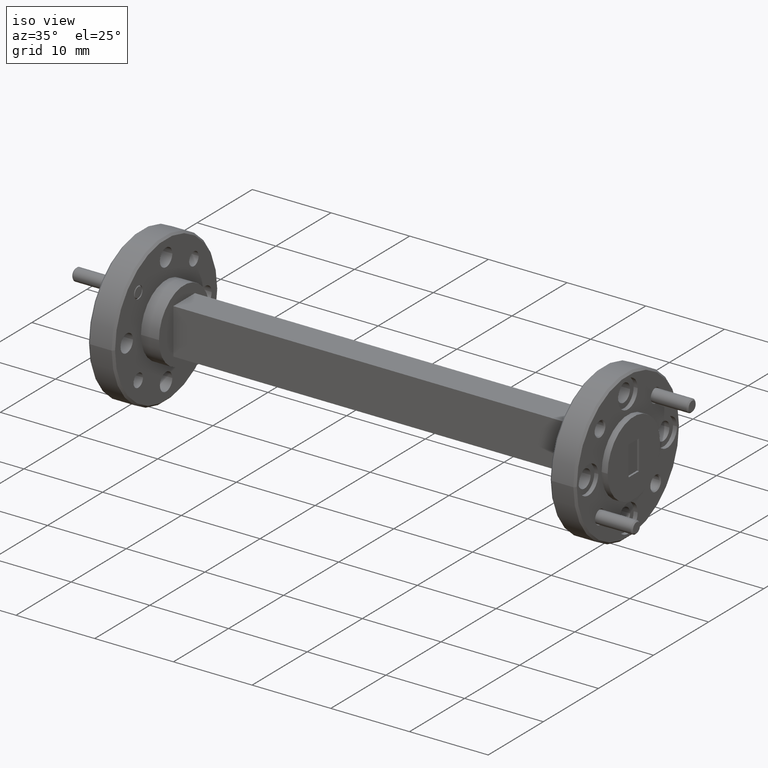
[diagram: clean part render]
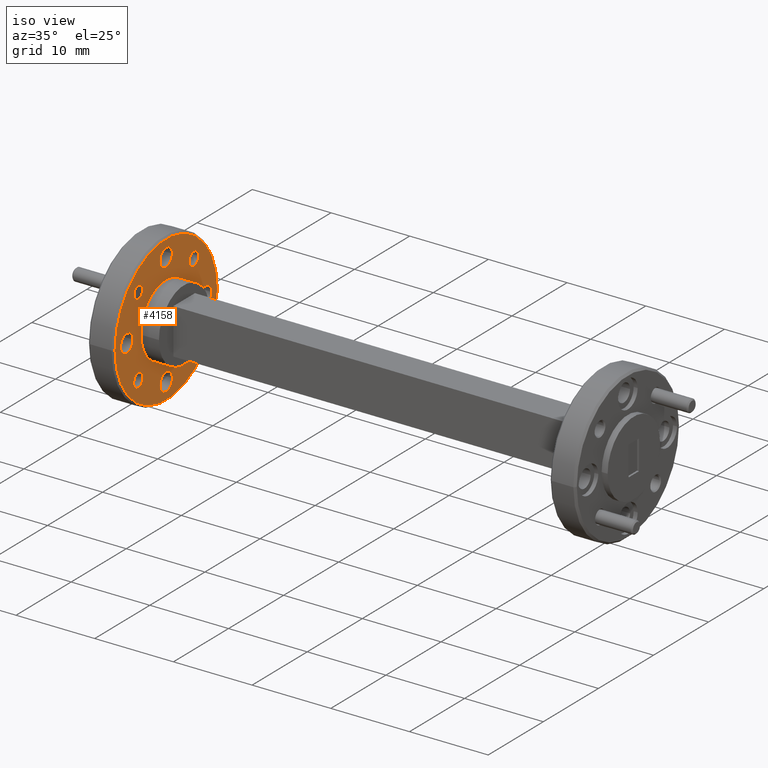
[diagram: same view with one face highlighted and labeled with its STEP entity id]
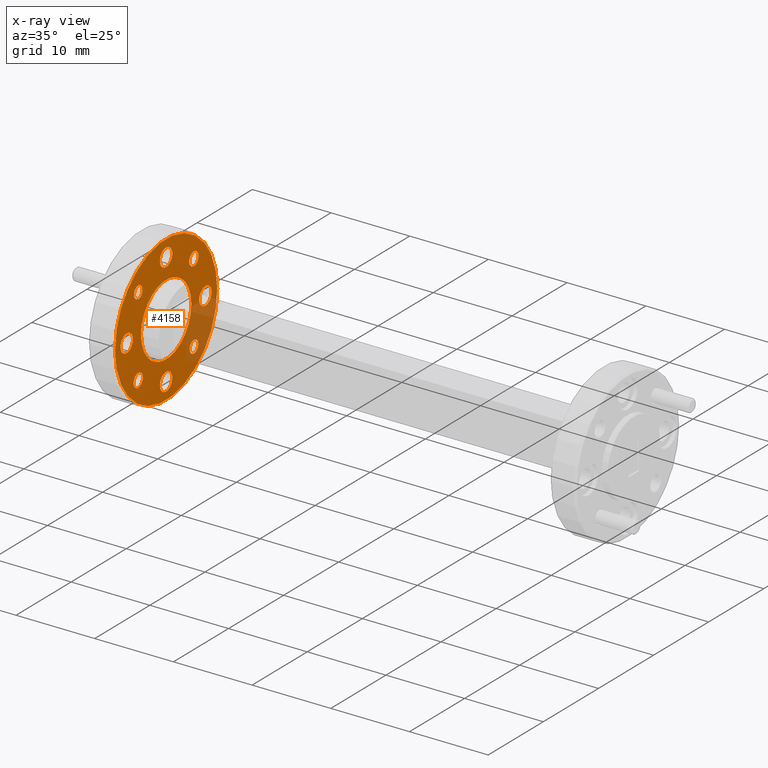
[diagram: x-ray of the same camera — body ghosted, the highlighted face saturated]
A machine part, iso view. The second image highlights one B-rep face of the part: STEP entity #4158.
The next image is the same camera in x-ray: the body ghosted, the highlighted face saturated — about 14% of this face is hidden behind the body in this view.
In plain terms, the highlighted planar face has unit normal (1, 0, -0).
Its self-contained STEP definition (entity closure, byte-faithful):
#10 = CARTESIAN_POINT ( 'NONE',  ( 0.1599999999999999201, 0.1653737822087167353, 0.1988737822087165430 ) ) ;
#12 = EDGE_LOOP ( 'NONE', ( #1241, #1988 ) ) ;
#22 = ORIENTED_EDGE ( 'NONE', *, *, #4149, .F. ) ;
#32 = DIRECTION ( 'NONE',  ( 1.000000000000000000, 1.224646799147353454E-16, -0.000000000000000000 ) ) ;
#33 = CIRCLE ( 'NONE', #1723, 0.04450000000000008116 ) ;
#72 = AXIS2_PLACEMENT_3D ( 'NONE', #1639, #2360, #3016 ) ;
#79 = DIRECTION ( 'NONE',  ( 0.000000000000000000, 1.000000000000000000, 0.000000000000000000 ) ) ;
#80 = DIRECTION ( 'NONE',  ( 0.000000000000000000, 1.000000000000000000, 0.000000000000000000 ) ) ;
#89 = VERTEX_POINT ( 'NONE', #10 ) ;
#118 = CARTESIAN_POINT ( 'NONE',  ( 0.1599999999999999201, -0.1988737822087163765, 0.1988737822087165430 ) ) ;
#140 = CARTESIAN_POINT ( 'NONE',  ( 0.1599999999999999201, 0.2367500000000000437, 0.000000000000000000 ) ) ;
#228 = DIRECTION ( 'NONE',  ( 0.000000000000000000, 1.000000000000000000, 0.000000000000000000 ) ) ;
#242 = EDGE_CURVE ( 'NONE', #3705, #1384, #3475, .T. ) ;
#248 = EDGE_CURVE ( 'NONE', #1384, #3705, #1343, .T. ) ;
#259 = DIRECTION ( 'NONE',  ( 0.000000000000000000, 1.000000000000000000, 0.000000000000000000 ) ) ;
#260 = ORIENTED_EDGE ( 'NONE', *, *, #3370, .F. ) ;
#288 = VERTEX_POINT ( 'NONE', #3959 ) ;
#301 = CARTESIAN_POINT ( 'NONE',  ( 0.1599999999999999201, 2.076554828674892129E-17, -0.2812500000000000000 ) ) ;
#388 = DIRECTION ( 'NONE',  ( 1.000000000000000000, 1.224646799147353454E-16, -0.000000000000000000 ) ) ;
#389 = DIRECTION ( 'NONE',  ( 1.000000000000000000, 1.224646799147353454E-16, -0.000000000000000000 ) ) ;
#422 = CARTESIAN_POINT ( 'NONE',  ( 0.1599999999999999201, -0.1681237822087164047, 0.1988737822087165430 ) ) ;
#427 = CARTESIAN_POINT ( 'NONE',  ( 0.1599999999999999201, 0.2323737822087167948, 0.1988737822087165430 ) ) ;
#457 = EDGE_CURVE ( 'NONE', #3302, #2813, #752, .T. ) ;
#458 = CIRCLE ( 'NONE', #3823, 0.03349999999999999506 ) ;
#486 = PLANE ( 'NONE',  #2641 ) ;
#528 = CARTESIAN_POINT ( 'NONE',  ( 0.1600000000000000033, 0.3749999999999996669, 0.000000000000000000 ) ) ;
#552 = AXIS2_PLACEMENT_3D ( 'NONE', #2821, #1495, #3575 ) ;
#554 = CARTESIAN_POINT ( 'NONE',  ( 0.1599999999999999201, -0.1988737822087164597, -0.1988737822087165430 ) ) ;
#570 = CARTESIAN_POINT ( 'NONE',  ( 0.1599999999999999201, 0.1988737822087166263, -0.1988737822087165430 ) ) ;
#573 = VERTEX_POINT ( 'NONE', #3746 ) ;
#591 = DIRECTION ( 'NONE',  ( 1.000000000000000000, 1.224646799147353454E-16, -0.000000000000000000 ) ) ;
#603 = EDGE_CURVE ( 'NONE', #3586, #2512, #2364, .T. ) ;
#607 = ORIENTED_EDGE ( 'NONE', *, *, #3587, .F. ) ;
#609 = ORIENTED_EDGE ( 'NONE', *, *, #242, .F. ) ;
#644 = CARTESIAN_POINT ( 'NONE',  ( 0.1600000000000000588, 1.901877013581963504E-17, 0.000000000000000000 ) ) ;
#669 = ORIENTED_EDGE ( 'NONE', *, *, #4051, .F. ) ;
#736 = ORIENTED_EDGE ( 'NONE', *, *, #2256, .F. ) ;
#741 = CIRCLE ( 'NONE', #1283, 0.04450000000000003259 ) ;
#750 = EDGE_CURVE ( 'NONE', #2032, #884, #4038, .T. ) ;
#752 = CIRCLE ( 'NONE', #2215, 0.1799999999999998546 ) ;
#813 = FACE_BOUND ( 'NONE', #907, .T. ) ;
#884 = VERTEX_POINT ( 'NONE', #2310 ) ;
#886 = AXIS2_PLACEMENT_3D ( 'NONE', #1137, #2822, #3806 ) ;
#907 = EDGE_LOOP ( 'NONE', ( #3434, #933 ) ) ;
#915 = DIRECTION ( 'NONE',  ( 1.000000000000000000, 1.224646799147353454E-16, -0.000000000000000000 ) ) ;
#933 = ORIENTED_EDGE ( 'NONE', *, *, #1248, .F. ) ;
#944 = DIRECTION ( 'NONE',  ( 1.000000000000000000, 1.224646799147353454E-16, -0.000000000000000000 ) ) ;
#1004 = CARTESIAN_POINT ( 'NONE',  ( 0.1599999999999999201, 2.076554828674892129E-17, 0.2812500000000000000 ) ) ;
#1024 = EDGE_LOOP ( 'NONE', ( #260, #3297 ) ) ;
#1057 = ORIENTED_EDGE ( 'NONE', *, *, #603, .T. ) ;
#1110 = VERTEX_POINT ( 'NONE', #3250 ) ;
#1119 = EDGE_CURVE ( 'NONE', #2391, #1110, #2545, .T. ) ;
#1137 = CARTESIAN_POINT ( 'NONE',  ( 0.1600000000000000588, 1.901877013581963504E-17, 0.000000000000000000 ) ) ;
#1181 = AXIS2_PLACEMENT_3D ( 'NONE', #1907, #944, #2258 ) ;
#1186 = FACE_BOUND ( 'NONE', #1865, .T. ) ;
#1200 = EDGE_CURVE ( 'NONE', #2512, #3586, #2247, .T. ) ;
#1213 = CIRCLE ( 'NONE', #4232, 0.03350000000000002975 ) ;
#1224 = CARTESIAN_POINT ( 'NONE',  ( 0.1599999999999999201, -0.2367499999999999882, 5.449678256205727423E-18 ) ) ;
#1232 = CIRCLE ( 'NONE', #2293, 0.04450000000000003259 ) ;
#1241 = ORIENTED_EDGE ( 'NONE', *, *, #3078, .F. ) ;
#1248 = EDGE_CURVE ( 'NONE', #3847, #1417, #3863, .T. ) ;
#1272 = DIRECTION ( 'NONE',  ( 0.000000000000000000, 1.000000000000000000, 0.000000000000000000 ) ) ;
#1283 = AXIS2_PLACEMENT_3D ( 'NONE', #3139, #389, #2695 ) ;
#1287 = CARTESIAN_POINT ( 'NONE',  ( 0.1599999999999999201, 0.1681237822087166545, -0.1988737822087165430 ) ) ;
#1310 = EDGE_CURVE ( 'NONE', #1417, #3847, #3454, .T. ) ;
#1316 = ORIENTED_EDGE ( 'NONE', *, *, #1200, .T. ) ;
#1343 = CIRCLE ( 'NONE', #3056, 0.03074999999999997180 ) ;
#1358 = AXIS2_PLACEMENT_3D ( 'NONE', #1791, #2183, #2205 ) ;
#1377 = ORIENTED_EDGE ( 'NONE', *, *, #1952, .F. ) ;
#1384 = VERTEX_POINT ( 'NONE', #2225 ) ;
#1390 = DIRECTION ( 'NONE',  ( 1.000000000000000000, 1.224646799147353454E-16, -0.000000000000000000 ) ) ;
#1417 = VERTEX_POINT ( 'NONE', #1566 ) ;
#1440 = DIRECTION ( 'NONE',  ( 1.000000000000000000, 1.224646799147353454E-16, -0.000000000000000000 ) ) ;
#1495 = DIRECTION ( 'NONE',  ( 1.000000000000000000, 1.224646799147353454E-16, -0.000000000000000000 ) ) ;
#1498 = AXIS2_PLACEMENT_3D ( 'NONE', #4283, #915, #228 ) ;
#1512 = AXIS2_PLACEMENT_3D ( 'NONE', #301, #1636, #3338 ) ;
#1566 = CARTESIAN_POINT ( 'NONE',  ( 0.1599999999999999201, -0.2296237822087163483, 0.1988737822087165430 ) ) ;
#1624 = ORIENTED_EDGE ( 'NONE', *, *, #3480, .F. ) ;
#1636 = DIRECTION ( 'NONE',  ( 1.000000000000000000, 1.224646799147353454E-16, -0.000000000000000000 ) ) ;
#1639 = CARTESIAN_POINT ( 'NONE',  ( 0.1599999999999999201, -0.1988737822087163765, 0.1988737822087165430 ) ) ;
#1723 = AXIS2_PLACEMENT_3D ( 'NONE', #1004, #2369, #79 ) ;
#1736 = CIRCLE ( 'NONE', #2780, 0.04449999999999999789 ) ;
#1791 = CARTESIAN_POINT ( 'NONE',  ( 0.1599999999999999201, 0.1988737822087167650, 0.1988737822087165430 ) ) ;
#1815 = FACE_OUTER_BOUND ( 'NONE', #3307, .T. ) ;
#1865 = EDGE_LOOP ( 'NONE', ( #1624, #2864 ) ) ;
#1874 = CARTESIAN_POINT ( 'NONE',  ( 0.1600000000000001144, -0.1799999999999998268, 2.204364238465233973E-17 ) ) ;
#1907 = CARTESIAN_POINT ( 'NONE',  ( 0.1599999999999999201, 2.076554828674892129E-17, 0.2812500000000000000 ) ) ;
#1936 = DIRECTION ( 'NONE',  ( 1.000000000000000000, 1.224646799147353454E-16, -0.000000000000000000 ) ) ;
#1952 = EDGE_CURVE ( 'NONE', #1110, #2391, #458, .T. ) ;
#1965 = AXIS2_PLACEMENT_3D ( 'NONE', #2272, #2539, #4173 ) ;
#1988 = ORIENTED_EDGE ( 'NONE', *, *, #4044, .F. ) ;
#2027 = DIRECTION ( 'NONE',  ( 0.000000000000000000, 1.000000000000000000, 0.000000000000000000 ) ) ;
#2032 = VERTEX_POINT ( 'NONE', #2413 ) ;
#2183 = DIRECTION ( 'NONE',  ( 1.000000000000000000, 1.224646799147353454E-16, -0.000000000000000000 ) ) ;
#2205 = DIRECTION ( 'NONE',  ( 0.000000000000000000, 1.000000000000000000, 0.000000000000000000 ) ) ;
#2215 = AXIS2_PLACEMENT_3D ( 'NONE', #644, #2317, #3667 ) ;
#2225 = CARTESIAN_POINT ( 'NONE',  ( 0.1599999999999999201, 0.2296237822087165981, -0.1988737822087165430 ) ) ;
#2247 = CIRCLE ( 'NONE', #1965, 0.3650000000000002687 ) ;
#2256 = EDGE_CURVE ( 'NONE', #573, #3048, #2457, .T. ) ;
#2258 = DIRECTION ( 'NONE',  ( 0.000000000000000000, 1.000000000000000000, 0.000000000000000000 ) ) ;
#2272 = CARTESIAN_POINT ( 'NONE',  ( 0.1600000000000000311, 1.901877013581963196E-17, 0.000000000000000000 ) ) ;
#2280 = CIRCLE ( 'NONE', #1358, 0.03350000000000002975 ) ;
#2293 = AXIS2_PLACEMENT_3D ( 'NONE', #2972, #32, #2365 ) ;
#2308 = EDGE_LOOP ( 'NONE', ( #607, #4006 ) ) ;
#2310 = CARTESIAN_POINT ( 'NONE',  ( 0.1599999999999999201, -0.04450000000000006728, -0.2812500000000000000 ) ) ;
#2317 = DIRECTION ( 'NONE',  ( 1.000000000000000000, 1.224646799147353454E-16, -0.000000000000000000 ) ) ;
#2351 = DIRECTION ( 'NONE',  ( 1.000000000000000000, 1.224646799147353454E-16, -0.000000000000000000 ) ) ;
#2360 = DIRECTION ( 'NONE',  ( 1.000000000000000000, 1.224646799147353454E-16, -0.000000000000000000 ) ) ;
#2364 = CIRCLE ( 'NONE', #552, 0.3650000000000002687 ) ;
#2365 = DIRECTION ( 'NONE',  ( 0.000000000000000000, 1.000000000000000000, 0.000000000000000000 ) ) ;
#2368 = EDGE_CURVE ( 'NONE', #3523, #89, #1213, .T. ) ;
#2369 = DIRECTION ( 'NONE',  ( 1.000000000000000000, 1.224646799147353454E-16, -0.000000000000000000 ) ) ;
#2391 = VERTEX_POINT ( 'NONE', #4332 ) ;
#2413 = CARTESIAN_POINT ( 'NONE',  ( 0.1599999999999999201, 0.04450000000000010197, -0.2812500000000000000 ) ) ;
#2454 = FACE_BOUND ( 'NONE', #2590, .T. ) ;
#2457 = CIRCLE ( 'NONE', #1181, 0.04450000000000008116 ) ;
#2512 = VERTEX_POINT ( 'NONE', #4089 ) ;
#2532 = EDGE_LOOP ( 'NONE', ( #736, #669 ) ) ;
#2539 = DIRECTION ( 'NONE',  ( 1.000000000000000000, 1.224646799147353454E-16, -0.000000000000000000 ) ) ;
#2542 = FACE_BOUND ( 'NONE', #2532, .T. ) ;
#2545 = CIRCLE ( 'NONE', #4145, 0.03349999999999999506 ) ;
#2590 = EDGE_LOOP ( 'NONE', ( #609, #3448 ) ) ;
#2618 = CARTESIAN_POINT ( 'NONE',  ( 0.1599999999999999201, 0.04450000000000010197, 0.2812500000000000000 ) ) ;
#2641 = AXIS2_PLACEMENT_3D ( 'NONE', #528, #1440, #3881 ) ;
#2685 = DIRECTION ( 'NONE',  ( 0.000000000000000000, 1.000000000000000000, 0.000000000000000000 ) ) ;
#2694 = CARTESIAN_POINT ( 'NONE',  ( 0.1599999999999999201, -0.2812499999999999445, 0.000000000000000000 ) ) ;
#2695 = DIRECTION ( 'NONE',  ( 0.000000000000000000, 1.000000000000000000, 0.000000000000000000 ) ) ;
#2719 = VERTEX_POINT ( 'NONE', #1224 ) ;
#2780 = AXIS2_PLACEMENT_3D ( 'NONE', #2694, #388, #2027 ) ;
#2813 = VERTEX_POINT ( 'NONE', #3872 ) ;
#2821 = CARTESIAN_POINT ( 'NONE',  ( 0.1600000000000000311, 1.901877013581963196E-17, 0.000000000000000000 ) ) ;
#2822 = DIRECTION ( 'NONE',  ( 1.000000000000000000, 1.224646799147353454E-16, -0.000000000000000000 ) ) ;
#2864 = ORIENTED_EDGE ( 'NONE', *, *, #3713, .F. ) ;
#2874 = FACE_BOUND ( 'NONE', #4059, .T. ) ;
#2907 = VERTEX_POINT ( 'NONE', #3647 ) ;
#2912 = CARTESIAN_POINT ( 'NONE',  ( 0.1599999999999999201, -0.2812499999999999445, 0.000000000000000000 ) ) ;
#2972 = CARTESIAN_POINT ( 'NONE',  ( 0.1599999999999999201, 0.2812500000000000555, 0.000000000000000000 ) ) ;
#3016 = DIRECTION ( 'NONE',  ( 0.000000000000000000, 1.000000000000000000, 0.000000000000000000 ) ) ;
#3037 = AXIS2_PLACEMENT_3D ( 'NONE', #118, #1390, #4062 ) ;
#3048 = VERTEX_POINT ( 'NONE', #2618 ) ;
#3056 = AXIS2_PLACEMENT_3D ( 'NONE', #570, #591, #1272 ) ;
#3069 = CIRCLE ( 'NONE', #1512, 0.04450000000000008116 ) ;
#3078 = EDGE_CURVE ( 'NONE', #3278, #2907, #1232, .T. ) ;
#3139 = CARTESIAN_POINT ( 'NONE',  ( 0.1599999999999999201, 0.2812500000000000555, 0.000000000000000000 ) ) ;
#3191 = FACE_BOUND ( 'NONE', #12, .T. ) ;
#3250 = CARTESIAN_POINT ( 'NONE',  ( 0.1599999999999999201, -0.1653737822087164577, -0.1988737822087165430 ) ) ;
#3277 = DIRECTION ( 'NONE',  ( 1.000000000000000000, 1.224646799147353454E-16, -0.000000000000000000 ) ) ;
#3278 = VERTEX_POINT ( 'NONE', #140 ) ;
#3297 = ORIENTED_EDGE ( 'NONE', *, *, #750, .F. ) ;
#3302 = VERTEX_POINT ( 'NONE', #1874 ) ;
#3307 = EDGE_LOOP ( 'NONE', ( #1057, #1316 ) ) ;
#3338 = DIRECTION ( 'NONE',  ( 0.000000000000000000, 1.000000000000000000, 0.000000000000000000 ) ) ;
#3370 = EDGE_CURVE ( 'NONE', #884, #2032, #3069, .T. ) ;
#3411 = DIRECTION ( 'NONE',  ( 1.000000000000000000, 1.224646799147353454E-16, -0.000000000000000000 ) ) ;
#3418 = CARTESIAN_POINT ( 'NONE',  ( 0.1599999999999999201, -0.1988737822087164597, -0.1988737822087165430 ) ) ;
#3432 = EDGE_LOOP ( 'NONE', ( #22, #4169 ) ) ;
#3434 = ORIENTED_EDGE ( 'NONE', *, *, #1310, .F. ) ;
#3448 = ORIENTED_EDGE ( 'NONE', *, *, #248, .F. ) ;
#3454 = CIRCLE ( 'NONE', #3037, 0.03074999999999997180 ) ;
#3475 = CIRCLE ( 'NONE', #1498, 0.03074999999999997180 ) ;
#3480 = EDGE_CURVE ( 'NONE', #288, #2719, #1736, .T. ) ;
#3523 = VERTEX_POINT ( 'NONE', #427 ) ;
#3529 = DIRECTION ( 'NONE',  ( 0.000000000000000000, 1.000000000000000000, 0.000000000000000000 ) ) ;
#3540 = FACE_BOUND ( 'NONE', #3432, .T. ) ;
#3546 = AXIS2_PLACEMENT_3D ( 'NONE', #2912, #1936, #3645 ) ;
#3549 = DIRECTION ( 'NONE',  ( 1.000000000000000000, 1.224646799147353454E-16, -0.000000000000000000 ) ) ;
#3575 = DIRECTION ( 'NONE',  ( -9.355643813918703337E-17, 1.000000000000000000, 0.000000000000000000 ) ) ;
#3586 = VERTEX_POINT ( 'NONE', #3850 ) ;
#3587 = EDGE_CURVE ( 'NONE', #2813, #3302, #4176, .T. ) ;
#3623 = CIRCLE ( 'NONE', #3546, 0.04449999999999999789 ) ;
#3645 = DIRECTION ( 'NONE',  ( 0.000000000000000000, 1.000000000000000000, 0.000000000000000000 ) ) ;
#3647 = CARTESIAN_POINT ( 'NONE',  ( 0.1599999999999999201, 0.3257500000000000950, 5.449678256205719720E-18 ) ) ;
#3667 = DIRECTION ( 'NONE',  ( -1.897116662266850936E-16, 1.000000000000000000, 0.000000000000000000 ) ) ;
#3705 = VERTEX_POINT ( 'NONE', #1287 ) ;
#3713 = EDGE_CURVE ( 'NONE', #2719, #288, #3623, .T. ) ;
#3746 = CARTESIAN_POINT ( 'NONE',  ( 0.1599999999999999201, -0.04450000000000006728, 0.2812500000000000000 ) ) ;
#3806 = DIRECTION ( 'NONE',  ( -1.897116662266850936E-16, 1.000000000000000000, 0.000000000000000000 ) ) ;
#3823 = AXIS2_PLACEMENT_3D ( 'NONE', #3418, #2351, #2685 ) ;
#3847 = VERTEX_POINT ( 'NONE', #422 ) ;
#3850 = CARTESIAN_POINT ( 'NONE',  ( 0.1600000000000000588, -0.3650000000000002687, 0.000000000000000000 ) ) ;
#3863 = CIRCLE ( 'NONE', #72, 0.03074999999999997180 ) ;
#3869 = CARTESIAN_POINT ( 'NONE',  ( 0.1599999999999999201, 2.076554828674892129E-17, -0.2812500000000000000 ) ) ;
#3872 = CARTESIAN_POINT ( 'NONE',  ( 0.1600000000000000311, 0.1799999999999998823, 0.000000000000000000 ) ) ;
#3881 = DIRECTION ( 'NONE',  ( -1.224646799147353454E-16, 1.000000000000000000, 0.000000000000000000 ) ) ;
#3882 = AXIS2_PLACEMENT_3D ( 'NONE', #3869, #3549, #3529 ) ;
#3959 = CARTESIAN_POINT ( 'NONE',  ( 0.1599999999999999201, -0.3257499999999999840, 0.000000000000000000 ) ) ;
#3962 = ORIENTED_EDGE ( 'NONE', *, *, #1119, .F. ) ;
#4005 = CARTESIAN_POINT ( 'NONE',  ( 0.1599999999999999201, 0.1988737822087167650, 0.1988737822087165430 ) ) ;
#4006 = ORIENTED_EDGE ( 'NONE', *, *, #457, .F. ) ;
#4038 = CIRCLE ( 'NONE', #3882, 0.04450000000000008116 ) ;
#4044 = EDGE_CURVE ( 'NONE', #2907, #3278, #741, .T. ) ;
#4051 = EDGE_CURVE ( 'NONE', #3048, #573, #33, .T. ) ;
#4059 = EDGE_LOOP ( 'NONE', ( #3962, #1377 ) ) ;
#4062 = DIRECTION ( 'NONE',  ( 0.000000000000000000, 1.000000000000000000, 0.000000000000000000 ) ) ;
#4089 = CARTESIAN_POINT ( 'NONE',  ( 0.1600000000000000033, 0.3650000000000002687, 4.531193156845206694E-17 ) ) ;
#4145 = AXIS2_PLACEMENT_3D ( 'NONE', #554, #3277, #259 ) ;
#4149 = EDGE_CURVE ( 'NONE', #89, #3523, #2280, .T. ) ;
#4158 = ADVANCED_FACE ( 'NONE', ( #1815, #2874, #813, #3540, #2454, #4197, #1186, #2542, #3191, #4177 ), #486, .T. ) ;
#4169 = ORIENTED_EDGE ( 'NONE', *, *, #2368, .F. ) ;
#4173 = DIRECTION ( 'NONE',  ( -9.355643813918703337E-17, 1.000000000000000000, 0.000000000000000000 ) ) ;
#4176 = CIRCLE ( 'NONE', #886, 0.1799999999999998546 ) ;
#4177 = FACE_BOUND ( 'NONE', #2308, .T. ) ;
#4197 = FACE_BOUND ( 'NONE', #1024, .T. ) ;
#4232 = AXIS2_PLACEMENT_3D ( 'NONE', #4005, #3411, #80 ) ;
#4283 = CARTESIAN_POINT ( 'NONE',  ( 0.1599999999999999201, 0.1988737822087166263, -0.1988737822087165430 ) ) ;
#4332 = CARTESIAN_POINT ( 'NONE',  ( 0.1599999999999999201, -0.2323737822087164340, -0.1988737822087165430 ) ) ;